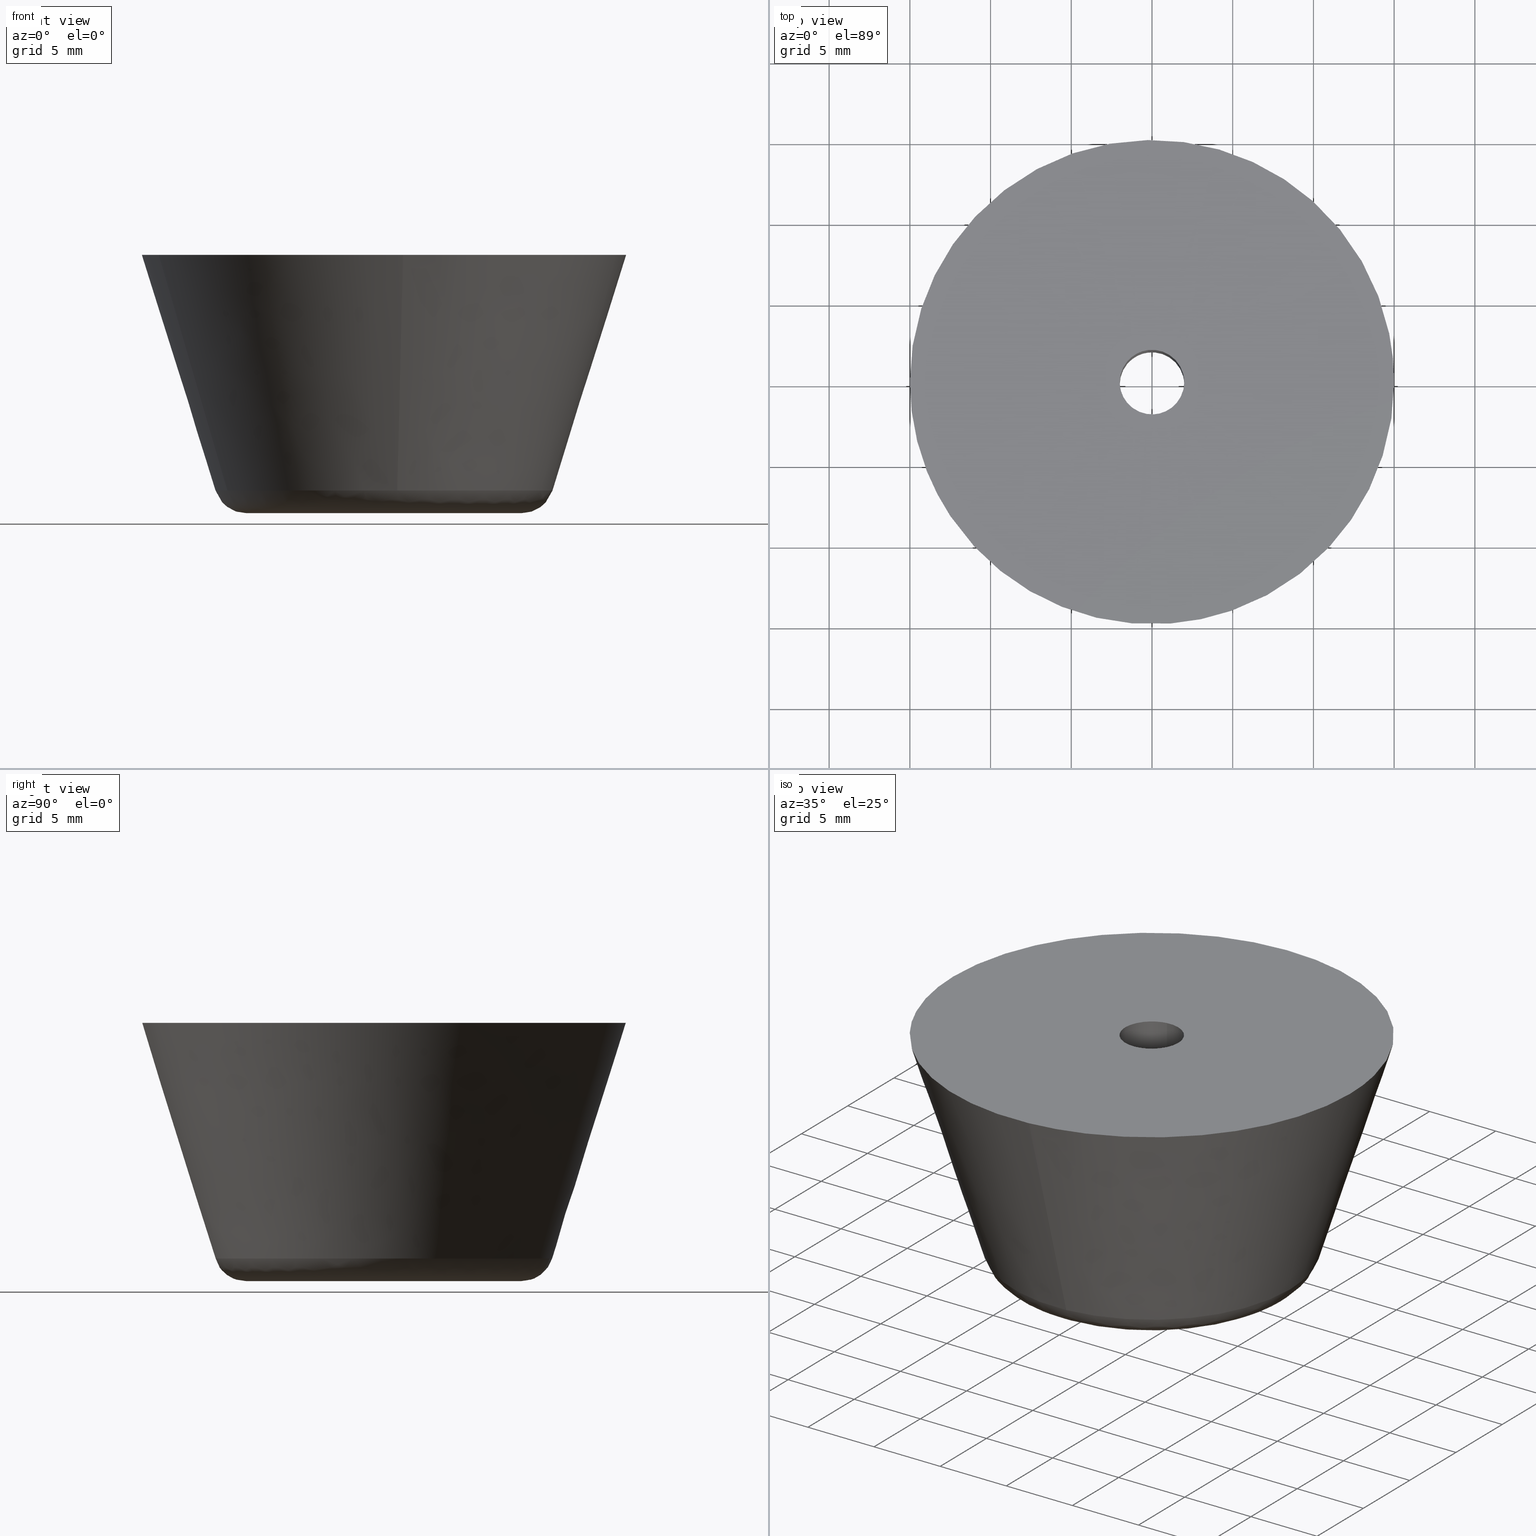
[diagram: canonical four-view strip — front | top / right | iso, engineering-drawing reading convention]
A machine part, canonical four-view strip (front | top / right | iso — engineering-drawing reading convention). The complete STEP part file that produces these views, byte-faithful:
ISO-10303-21;
HEADER;
/****************************************************************
 * Generated by software with PDE/Lib inside                    *
 * PDElib Version 4.4.1-0003, patched  Thursday August 19 11:58 *
 * International Technegroup Inc. (www.iti-oh.com)              *
 ****************************************************************/
FILE_DESCRIPTION((''),'2;1');
FILE_NAME('','2005-12-14T14:10:42',(''),(''),'','CADfix','');
FILE_SCHEMA(('AUTOMOTIVE_DESIGN'));
ENDSEC;
DATA;
#5=APPLICATION_CONTEXT('automotive design');
#6=APPLICATION_PROTOCOL_DEFINITION('Draft International Standard','automotive_design',1998,#5);
#7=PRODUCT_CONTEXT('None',#5,'mechanical');
#8=PRODUCT('rubber foot','','None',(#7));
#9=PRODUCT_RELATED_PRODUCT_CATEGORY('part','description',(#8));
#10=PRODUCT_DEFINITION_FORMATION('None','None',#8);
#11=PRODUCT_DEFINITION_CONTEXT('part definition',#5,'design');
#12=PRODUCT_DEFINITION('None','None',#10,#11);
#18=(NAMED_UNIT(*)PLANE_ANGLE_UNIT()SI_UNIT($,.RADIAN.));
#19=DIMENSIONAL_EXPONENTS(0.0,0.0,0.0,0.0,0.0,0.0,0.0);
#20=PLANE_ANGLE_MEASURE_WITH_UNIT(PLANE_ANGLE_MEASURE(0.017453292500000),#18);
#24=(CONVERSION_BASED_UNIT('DEGREE',#20)NAMED_UNIT(#19)PLANE_ANGLE_UNIT());
#28=(NAMED_UNIT(*)SI_UNIT($,.STERADIAN.)SOLID_ANGLE_UNIT());
#32=(LENGTH_UNIT()NAMED_UNIT(*)SI_UNIT(.MILLI.,.METRE.));
#34=UNCERTAINTY_MEASURE_WITH_UNIT(LENGTH_MEASURE(0.001000000000000),#32,'DISTANCE_ACCURACY_VALUE','');
#36=(GEOMETRIC_REPRESENTATION_CONTEXT(3)GLOBAL_UNCERTAINTY_ASSIGNED_CONTEXT((#34))GLOBAL_UNIT_ASSIGNED_CONTEXT((#24,#28,#32))REPRESENTATION_CONTEXT('None','None'));
#37=AXIS2_PLACEMENT_3D('',#38,#39,#40);
#38=CARTESIAN_POINT('',(0.0,0.0,0.0));
#39=DIRECTION('',(0.0,0.0,1.0));
#40=DIRECTION('',(1.0,0.0,0.0));
#41=ADVANCED_BREP_SHAPE_REPRESENTATION('',(#37,#855),#36);
#42=PRODUCT_DEFINITION_SHAPE('','',#12);
#43=SHAPE_DEFINITION_REPRESENTATION(#42,#41);
#44=CARTESIAN_POINT('',(-0.265541762350920,1.982515705081491,16.225000000000005));
#45=CARTESIAN_POINT('',(-0.250763563083323,1.984272318078493,16.225000000000001));
#46=CARTESIAN_POINT('',(-0.179229457275955,1.992775230897211,16.225000000000001));
#47=CARTESIAN_POINT('',(-0.122097079069714,1.996269596843733,16.225000000000001));
#48=CARTESIAN_POINT('',(1.874172517774020,2.118366675913447,16.225000000000009));
#49=CARTESIAN_POINT('',(1.996269596843733,0.122097079069714,16.225000000000001));
#50=CARTESIAN_POINT('',(2.118366675913447,-1.874172517774020,16.225000000000009));
#51=CARTESIAN_POINT('',(0.107740050417313,-1.997147710333691,16.225000000000012));
#52=CARTESIAN_POINT('',(0.093468306717904,-1.998020607572462,16.224999999999991));
#53=CARTESIAN_POINT('',(-0.265541762350920,1.982515705081491,6.769374999999999));
#54=CARTESIAN_POINT('',(-0.250763563083323,1.984272318078493,6.769375000000000));
#55=CARTESIAN_POINT('',(-0.179229457275955,1.992775230897211,6.769374999999999));
#56=CARTESIAN_POINT('',(-0.122097079069714,1.996269596843733,6.769374999999998));
#57=CARTESIAN_POINT('',(1.874172517774020,2.118366675913447,6.769374999999998));
#58=CARTESIAN_POINT('',(1.996269596843733,0.122097079069714,6.769374999999998));
#59=CARTESIAN_POINT('',(2.118366675913447,-1.874172517774020,6.769374999999998));
#60=CARTESIAN_POINT('',(0.107740050417313,-1.997147710333691,6.769375000000000));
#61=CARTESIAN_POINT('',(0.093468306717904,-1.998020607572462,6.769374999999996));
#69=(BOUNDED_SURFACE()B_SPLINE_SURFACE(2,1,((#44,#53),(#45,#54),(#46,#55),(#47,#56),(#48,#57),(#49,#58),(#50,#59),(#51,#60),(#52,#61)),.UNSPECIFIED.,.F.,.F.,.U.)B_SPLINE_SURFACE_WITH_KNOTS((3,1,2,2,1,3),(2,2),(0.0,0.033799847598702,0.166348187558092,3.480056686542851,6.793765185527611,6.827569362432394),(0.0,9.455625000000007),.UNSPECIFIED.)GEOMETRIC_REPRESENTATION_ITEM()RATIONAL_B_SPLINE_SURFACE(((0.972008777463900,0.972008777463900),(0.974757289129514,0.974757289129514),(0.988284271247462,0.988284271247462),(1.0,1.0),(0.707106781186548,0.707106781186548),(1.0,1.0),(0.707106781186548,0.707106781186548),(1.002987895340225,1.002987895340225),(1.005975790680451,1.005975790680451)))REPRESENTATION_ITEM('')SURFACE());
#70=CARTESIAN_POINT('',(-0.236068469328979,1.986019052725495,7.0));
#71=VERTEX_POINT('',#70);
#72=CARTESIAN_POINT('',(2.0,0.0,7.0));
#73=VERTEX_POINT('',#72);
#74=CARTESIAN_POINT('',(-0.236068469328979,1.986019052725495,6.999999999999999));
#75=CARTESIAN_POINT('',(-0.118448239319446,2.000000000000000,7.000000000000001));
#76=CARTESIAN_POINT('',(0.0,2.0,7.0));
#77=CARTESIAN_POINT('',(2.000000000000000,2.000000000000000,6.999999999999999));
#78=CARTESIAN_POINT('',(2.0,0.0,7.0));
#86=(BOUNDED_CURVE()B_SPLINE_CURVE(2,(#74,#75,#76,#77,#78),.UNSPECIFIED.,.F.,.U.)B_SPLINE_CURVE_WITH_KNOTS((3,2,3),(0.229562473513013,0.250000000000000,0.500000000000000),.UNSPECIFIED.)CURVE()GEOMETRIC_REPRESENTATION_ITEM()RATIONAL_B_SPLINE_CURVE((0.956026754182728,0.976055948330564,1.0,0.707106781186548,1.0))REPRESENTATION_ITEM(''));
#87=EDGE_CURVE('',#71,#73,#86,.T.);
#88=ORIENTED_EDGE('',*,*,#87,.T.);
#89=CARTESIAN_POINT('',(0.122093390652916,-1.996269822430129,7.000000000000023));
#90=VERTEX_POINT('',#89);
#91=CARTESIAN_POINT('',(2.0,0.0,7.0));
#92=CARTESIAN_POINT('',(2.000000000000000,-1.881415616509825,7.000000000000001));
#93=CARTESIAN_POINT('',(0.122093390652916,-1.996269822430129,7.000000000000023));
#101=(BOUNDED_CURVE()B_SPLINE_CURVE(2,(#91,#92,#93),.UNSPECIFIED.,.F.,.U.)B_SPLINE_CURVE_WITH_KNOTS((3,3),(0.500000000000000,0.739333281048922),.UNSPECIFIED.)CURVE()GEOMETRIC_REPRESENTATION_ITEM()RATIONAL_B_SPLINE_CURVE((1.0,0.719603619777586,0.976072724938143))REPRESENTATION_ITEM(''));
#102=EDGE_CURVE('',#73,#90,#101,.T.);
#103=ORIENTED_EDGE('',*,*,#102,.T.);
#104=CARTESIAN_POINT('',(0.122093436056999,-1.996269819653264,16.0));
#105=VERTEX_POINT('',#104);
#106=CARTESIAN_POINT('',(0.122093436056999,-1.996269819653264,16.0));
#107=CARTESIAN_POINT('',(0.122093390652916,-1.996269822430129,7.000000000000023));
#108=QUASI_UNIFORM_CURVE('',1,(#106,#107),.UNSPECIFIED.,.F.,.U.);
#109=EDGE_CURVE('',#105,#90,#108,.T.);
#110=ORIENTED_EDGE('',*,*,#109,.F.);
#111=CARTESIAN_POINT('',(2.0,0.0,16.0));
#112=VERTEX_POINT('',#111);
#113=CARTESIAN_POINT('',(2.0,0.0,16.0));
#114=CARTESIAN_POINT('',(1.999999999999999,-1.881415573638085,15.999999999999995));
#115=CARTESIAN_POINT('',(0.122093436056999,-1.996269819653264,16.0));
#123=(BOUNDED_CURVE()B_SPLINE_CURVE(2,(#113,#114,#115),.UNSPECIFIED.,.F.,.U.)B_SPLINE_CURVE_WITH_KNOTS((3,3),(0.500000000000000,0.739333277124436),.UNSPECIFIED.)CURVE()GEOMETRIC_REPRESENTATION_ITEM()RATIONAL_B_SPLINE_CURVE((1.0,0.719603624375408,0.976072716527199))REPRESENTATION_ITEM(''));
#124=EDGE_CURVE('',#112,#105,#123,.T.);
#125=ORIENTED_EDGE('',*,*,#124,.F.);
#126=CARTESIAN_POINT('',(-0.236068469328979,1.986019052725495,16.0));
#127=VERTEX_POINT('',#126);
#128=CARTESIAN_POINT('',(-0.236068469328979,1.986019052725495,16.000000000000004));
#129=CARTESIAN_POINT('',(-0.118448239319446,2.000000000000000,16.0));
#130=CARTESIAN_POINT('',(0.0,2.0,16.0));
#131=CARTESIAN_POINT('',(2.000000000000000,2.000000000000000,15.999999999999998));
#132=CARTESIAN_POINT('',(2.0,0.0,16.0));
#140=(BOUNDED_CURVE()B_SPLINE_CURVE(2,(#128,#129,#130,#131,#132),.UNSPECIFIED.,.F.,.U.)B_SPLINE_CURVE_WITH_KNOTS((3,2,3),(0.229562473513013,0.250000000000000,0.500000000000000),.UNSPECIFIED.)CURVE()GEOMETRIC_REPRESENTATION_ITEM()RATIONAL_B_SPLINE_CURVE((0.956026754182728,0.976055948330564,1.0,0.707106781186548,1.0))REPRESENTATION_ITEM(''));
#141=EDGE_CURVE('',#127,#112,#140,.T.);
#142=ORIENTED_EDGE('',*,*,#141,.F.);
#143=CARTESIAN_POINT('',(-0.236068469328979,1.986019052725495,16.0));
#144=CARTESIAN_POINT('',(-0.236068469328979,1.986019052725495,7.0));
#145=QUASI_UNIFORM_CURVE('',1,(#143,#144),.UNSPECIFIED.,.F.,.U.);
#146=EDGE_CURVE('',#127,#71,#145,.T.);
#147=ORIENTED_EDGE('',*,*,#146,.T.);
#148=EDGE_LOOP('',(#88,#103,#110,#125,#142,#147));
#149=FACE_OUTER_BOUND('',#148,.T.);
#150=ADVANCED_FACE('',(#149),#69,.F.);
#151=CARTESIAN_POINT('',(0.122097079069714,-1.996269596843733,16.225000000000001));
#152=CARTESIAN_POINT('',(-1.874172517774020,-2.118366675913447,16.225000000000009));
#153=CARTESIAN_POINT('',(-1.996269596843733,-0.122097079069714,16.225000000000001));
#154=CARTESIAN_POINT('',(-2.111572393465055,1.763086981679002,16.225000000000005));
#155=CARTESIAN_POINT('',(-0.236068469313517,1.986019052727332,16.224999999999998));
#156=CARTESIAN_POINT('',(0.122097079069714,-1.996269596843733,6.769374999999998));
#157=CARTESIAN_POINT('',(-1.874172517774020,-2.118366675913447,6.769374999999998));
#158=CARTESIAN_POINT('',(-1.996269596843733,-0.122097079069714,6.769374999999998));
#159=CARTESIAN_POINT('',(-2.111572393465055,1.763086981679002,6.769374999999998));
#160=CARTESIAN_POINT('',(-0.236068469313517,1.986019052727332,6.769374999999999));
#168=(BOUNDED_SURFACE()B_SPLINE_SURFACE(2,1,((#151,#156),(#152,#157),(#153,#158),(#154,#159),(#155,#160)),.UNSPECIFIED.,.F.,.F.,.U.)B_SPLINE_SURFACE_WITH_KNOTS((3,2,3),(2,2),(0.0,3.313708498984759,6.494868658010128),(0.0,9.455625000000005),.UNSPECIFIED.)GEOMETRIC_REPRESENTATION_ITEM()RATIONAL_B_SPLINE_SURFACE(((1.0,1.0),(0.707106781186548,0.707106781186548),(1.0,1.0),(0.718822509939086,0.718822509939086),(0.977505800795127,0.977505800795127)))REPRESENTATION_ITEM('')SURFACE());
#169=CARTESIAN_POINT('',(-2.0,0.0,7.0));
#170=VERTEX_POINT('',#169);
#171=CARTESIAN_POINT('',(-2.0,0.0,7.0));
#172=CARTESIAN_POINT('',(-2.000000000000000,1.776349051874881,6.999999999999999));
#173=CARTESIAN_POINT('',(-0.236068469328979,1.986019052725495,7.0));
#181=(BOUNDED_CURVE()B_SPLINE_CURVE(2,(#171,#172,#173),.UNSPECIFIED.,.F.,.U.)B_SPLINE_CURVE_WITH_KNOTS((3,3),(0.0,0.229562473513013),.UNSPECIFIED.)CURVE()GEOMETRIC_REPRESENTATION_ITEM()RATIONAL_B_SPLINE_CURVE((1.0,0.731050832855983,0.956026754182728))REPRESENTATION_ITEM(''));
#182=EDGE_CURVE('',#170,#71,#181,.T.);
#183=ORIENTED_EDGE('',*,*,#182,.T.);
#184=ORIENTED_EDGE('',*,*,#146,.F.);
#185=CARTESIAN_POINT('',(-2.0,0.0,16.0));
#186=VERTEX_POINT('',#185);
#187=CARTESIAN_POINT('',(-2.0,0.0,16.0));
#188=CARTESIAN_POINT('',(-2.000000000000000,1.776349051874881,15.999999999999998));
#189=CARTESIAN_POINT('',(-0.236068469328979,1.986019052725495,15.999999999999998));
#197=(BOUNDED_CURVE()B_SPLINE_CURVE(2,(#187,#188,#189),.UNSPECIFIED.,.F.,.U.)B_SPLINE_CURVE_WITH_KNOTS((3,3),(0.0,0.229562473513013),.UNSPECIFIED.)CURVE()GEOMETRIC_REPRESENTATION_ITEM()RATIONAL_B_SPLINE_CURVE((1.0,0.731050832855983,0.956026754182728))REPRESENTATION_ITEM(''));
#198=EDGE_CURVE('',#186,#127,#197,.T.);
#199=ORIENTED_EDGE('',*,*,#198,.F.);
#200=CARTESIAN_POINT('',(0.122093436056999,-1.996269819653264,16.0));
#201=CARTESIAN_POINT('',(0.061103699983748,-2.000000000000000,16.000000000000004));
#202=CARTESIAN_POINT('',(0.0,-2.0,16.0));
#203=CARTESIAN_POINT('',(-2.000000000000000,-2.000000000000000,15.999999999999998));
#204=CARTESIAN_POINT('',(-2.0,0.0,16.0));
#212=(BOUNDED_CURVE()B_SPLINE_CURVE(2,(#200,#201,#202,#203,#204),.UNSPECIFIED.,.F.,.U.)B_SPLINE_CURVE_WITH_KNOTS((3,2,3),(0.739333277124436,0.750000000000000,1.0),.UNSPECIFIED.)CURVE()GEOMETRIC_REPRESENTATION_ITEM()RATIONAL_B_SPLINE_CURVE((0.976072716527199,0.987503156811140,1.0,0.707106781186548,1.0))REPRESENTATION_ITEM(''));
#213=EDGE_CURVE('',#105,#186,#212,.T.);
#214=ORIENTED_EDGE('',*,*,#213,.F.);
#215=ORIENTED_EDGE('',*,*,#109,.T.);
#216=CARTESIAN_POINT('',(0.122093390652916,-1.996269822430129,7.000000000000023));
#217=CARTESIAN_POINT('',(0.061103677218059,-2.000000000000000,6.999999999999999));
#218=CARTESIAN_POINT('',(0.0,-2.0,7.0));
#219=CARTESIAN_POINT('',(-2.000000000000000,-2.000000000000000,6.999999999999999));
#220=CARTESIAN_POINT('',(-2.0,0.0,7.0));
#228=(BOUNDED_CURVE()B_SPLINE_CURVE(2,(#216,#217,#218,#219,#220),.UNSPECIFIED.,.F.,.U.)B_SPLINE_CURVE_WITH_KNOTS((3,2,3),(0.739333281048922,0.750000000000000,1.0),.UNSPECIFIED.)CURVE()GEOMETRIC_REPRESENTATION_ITEM()RATIONAL_B_SPLINE_CURVE((0.976072724938143,0.987503161408961,1.0,0.707106781186548,1.0))REPRESENTATION_ITEM(''));
#229=EDGE_CURVE('',#90,#170,#228,.T.);
#230=ORIENTED_EDGE('',*,*,#229,.T.);
#231=EDGE_LOOP('',(#183,#184,#199,#214,#215,#230));
#232=FACE_OUTER_BOUND('',#231,.T.);
#233=ADVANCED_FACE('',(#232),#168,.F.);
#234=CARTESIAN_POINT('',(-0.590171173283792,4.965047631818332,7.175000000000001));
#235=CARTESIAN_POINT('',(-0.448073643189888,4.981938077243028,7.175000000000001));
#236=CARTESIAN_POINT('',(-0.305242697674285,4.990673992109334,7.175000000000001));
#237=CARTESIAN_POINT('',(4.685431294435048,5.295916689783620,7.175000000000001));
#238=CARTESIAN_POINT('',(4.990673992109334,0.305242697674285,7.175000000000001));
#239=CARTESIAN_POINT('',(5.295916689783620,-4.685431294435048,7.175000000000001));
#240=CARTESIAN_POINT('',(0.305242697674285,-4.990673992109334,7.175000000000001));
#241=CARTESIAN_POINT('',(-0.590171173283792,4.965047631818332,-0.179375000000000));
#242=CARTESIAN_POINT('',(-0.448073643189888,4.981938077243028,-0.179375000000000));
#243=CARTESIAN_POINT('',(-0.305242697674285,4.990673992109334,-0.179375000000000));
#244=CARTESIAN_POINT('',(4.685431294435048,5.295916689783620,-0.179375000000000));
#245=CARTESIAN_POINT('',(4.990673992109334,0.305242697674285,-0.179375000000000));
#246=CARTESIAN_POINT('',(5.295916689783620,-4.685431294435048,-0.179375000000000));
#247=CARTESIAN_POINT('',(0.305242697674285,-4.990673992109334,-0.179375000000000));
#255=(BOUNDED_SURFACE()B_SPLINE_SURFACE(2,1,((#234,#241),(#235,#242),(#236,#243),(#237,#244),(#238,#245),(#239,#246),(#240,#247)),.UNSPECIFIED.,.F.,.F.,.U.)B_SPLINE_SURFACE_WITH_KNOTS((3,2,2,3),(2,2),(0.0,0.331370849898476,8.615642097360375,16.899913344822270),(0.0,7.354375000000001),.UNSPECIFIED.)GEOMETRIC_REPRESENTATION_ITEM()RATIONAL_B_SPLINE_SURFACE(((0.977505800795127,0.977505800795127),(0.988284271247462,0.988284271247462),(1.0,1.0),(0.707106781186548,0.707106781186548),(1.0,1.0),(0.707106781186548,0.707106781186548),(1.0,1.0)))REPRESENTATION_ITEM('')SURFACE());
#256=CARTESIAN_POINT('',(-0.590171173301897,4.965047631816179,7.0));
#257=VERTEX_POINT('',#256);
#258=CARTESIAN_POINT('',(5.0,0.0,7.0));
#259=VERTEX_POINT('',#258);
#260=CARTESIAN_POINT('',(-0.590171173301897,4.965047631816179,7.0));
#261=CARTESIAN_POINT('',(-0.296120598277846,5.0,7.0));
#262=CARTESIAN_POINT('',(0.0,5.0,7.0));
#263=CARTESIAN_POINT('',(5.000000000000001,5.000000000000001,6.999999999999999));
#264=CARTESIAN_POINT('',(5.0,0.0,7.0));
#272=(BOUNDED_CURVE()B_SPLINE_CURVE(2,(#260,#261,#262,#263,#264),.UNSPECIFIED.,.F.,.U.)B_SPLINE_CURVE_WITH_KNOTS((3,2,3),(0.229562473514412,0.250000000000000,0.500000000000000),.UNSPECIFIED.)CURVE()GEOMETRIC_REPRESENTATION_ITEM()RATIONAL_B_SPLINE_CURVE((0.956026754185470,0.976055948332203,1.0,0.707106781186548,1.0))REPRESENTATION_ITEM(''));
#273=EDGE_CURVE('',#257,#259,#272,.T.);
#274=ORIENTED_EDGE('',*,*,#273,.F.);
#275=CARTESIAN_POINT('',(-0.590161985997096,4.965048723849380,-4.259142E-017));
#276=VERTEX_POINT('',#275);
#277=CARTESIAN_POINT('',(-0.590171173301897,4.965047631816179,7.0));
#278=CARTESIAN_POINT('',(-0.590161985997096,4.965048723849380,-4.259142E-017));
#279=QUASI_UNIFORM_CURVE('',1,(#277,#278),.UNSPECIFIED.,.F.,.U.);
#280=EDGE_CURVE('',#257,#276,#279,.T.);
#281=ORIENTED_EDGE('',*,*,#280,.T.);
#282=CARTESIAN_POINT('',(5.0,0.0,0.0));
#283=VERTEX_POINT('',#282);
#284=CARTESIAN_POINT('',(-0.590161985997096,4.965048723849380,-4.259142E-017));
#285=CARTESIAN_POINT('',(-0.296115956054067,5.0,0.0));
#286=CARTESIAN_POINT('',(0.0,5.0,0.0));
#287=CARTESIAN_POINT('',(5.000000000000001,5.000000000000001,0.0));
#288=CARTESIAN_POINT('',(5.0,0.0,0.0));
#296=(BOUNDED_CURVE()B_SPLINE_CURVE(2,(#284,#285,#286,#287,#288),.UNSPECIFIED.,.F.,.U.)B_SPLINE_CURVE_WITH_KNOTS((3,2,3),(0.229562786238015,0.250000000000000,0.500000000000000),.UNSPECIFIED.)CURVE()GEOMETRIC_REPRESENTATION_ITEM()RATIONAL_B_SPLINE_CURVE((0.956027367137448,0.976056314710695,1.0,0.707106781186548,1.0))REPRESENTATION_ITEM(''));
#297=EDGE_CURVE('',#276,#283,#296,.T.);
#298=ORIENTED_EDGE('',*,*,#297,.T.);
#299=CARTESIAN_POINT('',(0.305242697700494,-4.990673992107731,-4.163336E-017));
#300=VERTEX_POINT('',#299);
#301=CARTESIAN_POINT('',(5.0,0.0,0.0));
#302=CARTESIAN_POINT('',(4.999999999999999,-4.703530334478959,0.0));
#303=CARTESIAN_POINT('',(0.305242697700494,-4.990673992107731,-4.163336E-017));
#311=(BOUNDED_CURVE()B_SPLINE_CURVE(2,(#301,#302,#303),.UNSPECIFIED.,.F.,.U.)B_SPLINE_CURVE_WITH_KNOTS((3,3),(0.500000000000000,0.739332962240155),.UNSPECIFIED.)CURVE()GEOMETRIC_REPRESENTATION_ITEM()RATIONAL_B_SPLINE_CURVE((1.0,0.719603993285290,0.976072041669316))REPRESENTATION_ITEM(''));
#312=EDGE_CURVE('',#283,#300,#311,.T.);
#313=ORIENTED_EDGE('',*,*,#312,.T.);
#314=CARTESIAN_POINT('',(0.305242697700494,-4.990673992107731,7.0));
#315=VERTEX_POINT('',#314);
#316=CARTESIAN_POINT('',(0.305242697700494,-4.990673992107731,7.0));
#317=CARTESIAN_POINT('',(0.305242697700494,-4.990673992107731,-4.163336E-017));
#318=QUASI_UNIFORM_CURVE('',1,(#316,#317),.UNSPECIFIED.,.F.,.U.);
#319=EDGE_CURVE('',#315,#300,#318,.T.);
#320=ORIENTED_EDGE('',*,*,#319,.F.);
#321=CARTESIAN_POINT('',(5.0,0.0,7.0));
#322=CARTESIAN_POINT('',(4.999999999999999,-4.703530334478959,7.0));
#323=CARTESIAN_POINT('',(0.305242697700494,-4.990673992107731,7.0));
#331=(BOUNDED_CURVE()B_SPLINE_CURVE(2,(#321,#322,#323),.UNSPECIFIED.,.F.,.U.)B_SPLINE_CURVE_WITH_KNOTS((3,3),(0.500000000000000,0.739332962240155),.UNSPECIFIED.)CURVE()GEOMETRIC_REPRESENTATION_ITEM()RATIONAL_B_SPLINE_CURVE((1.0,0.719603993285290,0.976072041669316))REPRESENTATION_ITEM(''));
#332=EDGE_CURVE('',#259,#315,#331,.T.);
#333=ORIENTED_EDGE('',*,*,#332,.F.);
#334=EDGE_LOOP('',(#274,#281,#298,#313,#320,#333));
#335=FACE_OUTER_BOUND('',#334,.T.);
#336=ADVANCED_FACE('',(#335),#255,.F.);
#337=CARTESIAN_POINT('',(0.374015151210253,-4.986467688656898,7.175000000000003));
#338=CARTESIAN_POINT('',(0.339727342637196,-4.988564820868444,7.175000000000002));
#339=CARTESIAN_POINT('',(-4.685431294435048,-5.295916689783620,7.175000000000001));
#340=CARTESIAN_POINT('',(-4.990673992109334,-0.305242697674285,7.175000000000001));
#341=CARTESIAN_POINT('',(-5.278930983662638,4.407717454197504,7.175000000000000));
#342=CARTESIAN_POINT('',(-0.555063642270887,4.969220694053668,7.175000000000002));
#343=CARTESIAN_POINT('',(-0.520144802017644,4.973371327531964,7.175000000000001));
#344=CARTESIAN_POINT('',(0.374015151210253,-4.986467688656898,-0.179375000000000));
#345=CARTESIAN_POINT('',(0.339727342637196,-4.988564820868444,-0.179375000000000));
#346=CARTESIAN_POINT('',(-4.685431294435048,-5.295916689783620,-0.179375000000000));
#347=CARTESIAN_POINT('',(-4.990673992109334,-0.305242697674285,-0.179375000000000));
#348=CARTESIAN_POINT('',(-5.278930983662638,4.407717454197504,-0.179375000000000));
#349=CARTESIAN_POINT('',(-0.555063642270887,4.969220694053668,-0.179375000000000));
#350=CARTESIAN_POINT('',(-0.520144802017644,4.973371327531964,-0.179375000000000));
#358=(BOUNDED_SURFACE()B_SPLINE_SURFACE(2,1,((#337,#344),(#338,#345),(#339,#346),(#340,#347),(#341,#348),(#342,#349),(#343,#350)),.UNSPECIFIED.,.F.,.F.,.U.)B_SPLINE_SURFACE_WITH_KNOTS((3,1,2,1,3),(2,2),(0.0,0.081185909419015,8.365457156880913,16.318357554444329,16.399554059356099),(0.0,7.354375000000002),.UNSPECIFIED.)GEOMETRIC_REPRESENTATION_ITEM()RATIONAL_B_SPLINE_SURFACE(((1.005740710708698,1.005740710708698),(1.002870355354349,1.002870355354349),(0.707106781186548,0.707106781186548),(1.0,1.0),(0.718822509939086,0.718822509939086),(0.980146872359787,0.980146872359787),(0.982787943924448,0.982787943924448)))REPRESENTATION_ITEM('')SURFACE());
#359=CARTESIAN_POINT('',(-5.0,0.0,7.0));
#360=VERTEX_POINT('',#359);
#361=CARTESIAN_POINT('',(-5.0,0.0,7.0));
#362=CARTESIAN_POINT('',(-5.0,4.440872629724227,6.999999999999999));
#363=CARTESIAN_POINT('',(-0.590171173301897,4.965047631816179,7.0));
#371=(BOUNDED_CURVE()B_SPLINE_CURVE(2,(#361,#362,#363),.UNSPECIFIED.,.F.,.U.)B_SPLINE_CURVE_WITH_KNOTS((3,3),(0.0,0.229562473514412),.UNSPECIFIED.)CURVE()GEOMETRIC_REPRESENTATION_ITEM()RATIONAL_B_SPLINE_CURVE((1.0,0.731050832854344,0.956026754185470))REPRESENTATION_ITEM(''));
#372=EDGE_CURVE('',#360,#257,#371,.T.);
#373=ORIENTED_EDGE('',*,*,#372,.F.);
#374=CARTESIAN_POINT('',(0.305242697700494,-4.990673992107731,7.000000000000001));
#375=CARTESIAN_POINT('',(0.152763816519227,-5.000000000000001,7.000000000000001));
#376=CARTESIAN_POINT('',(0.0,-5.0,7.0));
#377=CARTESIAN_POINT('',(-5.000000000000001,-5.000000000000001,6.999999999999999));
#378=CARTESIAN_POINT('',(-5.0,0.0,7.0));
#386=(BOUNDED_CURVE()B_SPLINE_CURVE(2,(#374,#375,#376,#377,#378),.UNSPECIFIED.,.F.,.U.)B_SPLINE_CURVE_WITH_KNOTS((3,2,3),(0.739332962240156,0.750000000000000,1.0),.UNSPECIFIED.)CURVE()GEOMETRIC_REPRESENTATION_ITEM()RATIONAL_B_SPLINE_CURVE((0.976072041669318,0.987502787901259,1.0,0.707106781186548,1.0))REPRESENTATION_ITEM(''));
#387=EDGE_CURVE('',#315,#360,#386,.T.);
#388=ORIENTED_EDGE('',*,*,#387,.F.);
#389=ORIENTED_EDGE('',*,*,#319,.T.);
#390=CARTESIAN_POINT('',(-5.0,0.0,0.0));
#391=VERTEX_POINT('',#390);
#392=CARTESIAN_POINT('',(0.305242697700494,-4.990673992107731,-4.163336E-017));
#393=CARTESIAN_POINT('',(0.152763816519227,-5.000000000000001,0.0));
#394=CARTESIAN_POINT('',(0.0,-5.0,0.0));
#395=CARTESIAN_POINT('',(-5.000000000000001,-5.000000000000001,0.0));
#396=CARTESIAN_POINT('',(-5.0,0.0,0.0));
#404=(BOUNDED_CURVE()B_SPLINE_CURVE(2,(#392,#393,#394,#395,#396),.UNSPECIFIED.,.F.,.U.)B_SPLINE_CURVE_WITH_KNOTS((3,2,3),(0.739332962240156,0.750000000000000,1.0),.UNSPECIFIED.)CURVE()GEOMETRIC_REPRESENTATION_ITEM()RATIONAL_B_SPLINE_CURVE((0.976072041669318,0.987502787901259,1.0,0.707106781186548,1.0))REPRESENTATION_ITEM(''));
#405=EDGE_CURVE('',#300,#391,#404,.T.);
#406=ORIENTED_EDGE('',*,*,#405,.T.);
#407=CARTESIAN_POINT('',(-5.0,0.0,0.0));
#408=CARTESIAN_POINT('',(-5.0,4.440880904966643,0.0));
#409=CARTESIAN_POINT('',(-0.590161985997096,4.965048723849380,-4.259142E-017));
#417=(BOUNDED_CURVE()B_SPLINE_CURVE(2,(#407,#408,#409),.UNSPECIFIED.,.F.,.U.)B_SPLINE_CURVE_WITH_KNOTS((3,3),(0.0,0.229562786238015),.UNSPECIFIED.)CURVE()GEOMETRIC_REPRESENTATION_ITEM()RATIONAL_B_SPLINE_CURVE((1.0,0.731050466475853,0.956027367137448))REPRESENTATION_ITEM(''));
#418=EDGE_CURVE('',#391,#276,#417,.T.);
#419=ORIENTED_EDGE('',*,*,#418,.T.);
#420=ORIENTED_EDGE('',*,*,#280,.F.);
#421=EDGE_LOOP('',(#373,#388,#389,#406,#419,#420));
#422=FACE_OUTER_BOUND('',#421,.T.);
#423=ADVANCED_FACE('',(#422),#358,.F.);
#424=CARTESIAN_POINT('',(-9.624099755138655,-3.738585537900458,1.038536249999999));
#425=CARTESIAN_POINT('',(-9.612271390467090,-3.768481445253441,1.038536249999999));
#426=CARTESIAN_POINT('',(-6.794163938411678,-10.891180282898997,1.038536249999999));
#427=CARTESIAN_POINT('',(0.839131332426015,-10.290426916387787,1.038536250000000));
#428=CARTESIAN_POINT('',(0.868140430357681,-10.288143850867110,1.038536249999999));
#429=CARTESIAN_POINT('',(-14.091319182249395,-5.473925192490683,16.374036593750002));
#430=CARTESIAN_POINT('',(-14.074000444265407,-5.517697886402020,16.374036593749995));
#431=CARTESIAN_POINT('',(-9.947811750555598,-15.946540615999679,16.374036593749995));
#432=CARTESIAN_POINT('',(1.228631014004992,-15.066935494201095,16.374036593750009));
#433=CARTESIAN_POINT('',(1.271105268069740,-15.063592697910090,16.374036593749995));
#441=(BOUNDED_SURFACE()B_SPLINE_SURFACE(2,1,((#424,#429),(#425,#430),(#426,#431),(#427,#432),(#428,#433)),.UNSPECIFIED.,.F.,.F.,.U.)B_SPLINE_SURFACE_WITH_KNOTS((3,1,1,3),(2,2),(0.0,0.099513552533516,20.000119413965301,20.099618811483360),(0.0,16.066892167432538),.UNSPECIFIED.)GEOMETRIC_REPRESENTATION_ITEM()RATIONAL_B_SPLINE_SURFACE(((0.907680206113633,0.907680206113633),(0.906977188046664,0.906977188046664),(0.765685424949238,0.765685424949238),(1.001171530113685,1.001171530113685),(1.002343060227371,1.002343060227371)))REPRESENTATION_ITEM('')SURFACE());
#442=CARTESIAN_POINT('',(0.818999183986400,-10.406399021797251,1.403448406243327));
#443=VERTEX_POINT('',#442);
#444=CARTESIAN_POINT('',(-9.706462087134847,-3.840370222216521,1.403440654762399));
#445=VERTEX_POINT('',#444);
#446=CARTESIAN_POINT('',(0.818999183986400,-10.406399021797245,1.403448406243326));
#447=CARTESIAN_POINT('',(0.410131792018752,-10.438577488119355,1.403448200127219));
#448=CARTESIAN_POINT('',(0.000000111438537,-10.438577471909250,1.403447982698944));
#449=CARTESIAN_POINT('',(-7.095877095890447,-10.438577191450744,1.403444220872161));
#450=CARTESIAN_POINT('',(-9.706462087134847,-3.840370222216521,1.403440654762399));
#458=(BOUNDED_CURVE()B_SPLINE_CURVE(2,(#446,#447,#448,#449,#450),.UNSPECIFIED.,.F.,.U.)B_SPLINE_CURVE_WITH_KNOTS((3,2,3),(0.736331336337999,0.750000000000000,0.937532653506869),.UNSPECIFIED.)CURVE()GEOMETRIC_REPRESENTATION_ITEM()RATIONAL_B_SPLINE_CURVE((0.969723430685922,0.983986164412632,1.0,0.780291829926981,0.890203308901416))REPRESENTATION_ITEM(''));
#459=EDGE_CURVE('',#443,#445,#458,.T.);
#460=ORIENTED_EDGE('',*,*,#459,.F.);
#461=CARTESIAN_POINT('',(1.176877674963126,-14.953758607669529,15.999993339557220));
#462=VERTEX_POINT('',#461);
#463=CARTESIAN_POINT('',(0.818999183986400,-10.406399021797251,1.403448406243327));
#464=CARTESIAN_POINT('',(1.176877674963126,-14.953758607669529,15.999993339557220));
#465=QUASI_UNIFORM_CURVE('',1,(#463,#464),.UNSPECIFIED.,.F.,.U.);
#466=EDGE_CURVE('',#443,#462,#465,.T.);
#467=ORIENTED_EDGE('',*,*,#466,.T.);
#468=CARTESIAN_POINT('',(-13.947966128556700,-5.518529929664375,15.999992715519070));
#469=VERTEX_POINT('',#468);
#470=CARTESIAN_POINT('',(1.176877674963126,-14.953758607669529,15.999993339557214));
#471=CARTESIAN_POINT('',(0.589347183664466,-14.999997957930429,15.999993322963764));
#472=CARTESIAN_POINT('',(-0.000000038720543,-14.999997992641530,15.999993305459631));
#473=CARTESIAN_POINT('',(-10.196612230384220,-14.999998593196917,15.999993002611232));
#474=CARTESIAN_POINT('',(-13.947966128556695,-5.518529929664375,15.999992715519074));
#482=(BOUNDED_CURVE()B_SPLINE_CURVE(2,(#470,#471,#472,#473,#474),.UNSPECIFIED.,.F.,.U.)B_SPLINE_CURVE_WITH_KNOTS((3,2,3),(0.736331399193141,0.750000000000000,0.937532605507927),.UNSPECIFIED.)CURVE()GEOMETRIC_REPRESENTATION_ITEM()RATIONAL_B_SPLINE_CURVE((0.969723561859888,0.983986238052012,1.0,0.780291886161240,0.890203252637798))REPRESENTATION_ITEM(''));
#483=EDGE_CURVE('',#462,#469,#482,.T.);
#484=ORIENTED_EDGE('',*,*,#483,.T.);
#485=CARTESIAN_POINT('',(-9.706462087134847,-3.840370222216521,1.403440654762399));
#486=CARTESIAN_POINT('',(-13.947966128556700,-5.518529929664375,15.999992715519070));
#487=QUASI_UNIFORM_CURVE('',1,(#485,#486),.UNSPECIFIED.,.F.,.U.);
#488=EDGE_CURVE('',#445,#469,#487,.T.);
#489=ORIENTED_EDGE('',*,*,#488,.F.);
#490=EDGE_LOOP('',(#460,#467,#484,#489));
#491=FACE_OUTER_BOUND('',#490,.T.);
#492=ADVANCED_FACE('',(#491),#441,.T.);
#493=CARTESIAN_POINT('',(0.810054264430752,-10.292715331268459,1.038536250000000));
#494=CARTESIAN_POINT('',(11.102769595699215,-9.482661066837711,1.038536250000000));
#495=CARTESIAN_POINT('',(10.292715331268459,0.810054264430752,1.038536250000000));
#496=CARTESIAN_POINT('',(9.482661066837711,11.102769595699215,1.038536250000000));
#497=CARTESIAN_POINT('',(-0.810054264430752,10.292715331268459,1.038536250000000));
#498=CARTESIAN_POINT('',(-11.102769595699215,9.482661066837711,1.038536250000000));
#499=CARTESIAN_POINT('',(-10.292715331268459,-0.810054264430752,1.038536250000000));
#500=CARTESIAN_POINT('',(-10.171028084699630,-2.356237333115685,1.038536249999999));
#501=CARTESIAN_POINT('',(-9.600424674717358,-3.798423734515331,1.038536249999999));
#502=CARTESIAN_POINT('',(1.186057240204856,-15.070286122865131,16.374036593749999));
#503=CARTESIAN_POINT('',(16.256343363069981,-13.884228882660269,16.374036593749995));
#504=CARTESIAN_POINT('',(15.070286122865131,1.186057240204856,16.374036593749999));
#505=CARTESIAN_POINT('',(13.884228882660269,16.256343363069981,16.374036593749995));
#506=CARTESIAN_POINT('',(-1.186057240204856,15.070286122865131,16.374036593749999));
#507=CARTESIAN_POINT('',(-16.256343363069981,13.884228882660269,16.374036593749995));
#508=CARTESIAN_POINT('',(-15.070286122865131,-1.186057240204856,16.374036593749999));
#509=CARTESIAN_POINT('',(-14.892115293859021,-3.449932271570356,16.374036593749999));
#510=CARTESIAN_POINT('',(-14.056654837181295,-5.561538491317948,16.374036593749999));
#518=(BOUNDED_SURFACE()B_SPLINE_SURFACE(2,1,((#493,#502),(#494,#503),(#495,#504),(#496,#505),(#497,#506),(#498,#507),(#499,#508),(#500,#509),(#501,#510)),.UNSPECIFIED.,.F.,.F.,.U.)B_SPLINE_SURFACE_WITH_KNOTS((3,2,2,2,3),(2,2),(0.0,25.046477535136670,50.092955070273327,75.139432605409993,80.148728112437340),(0.0,16.066864401608200),.UNSPECIFIED.)GEOMETRIC_REPRESENTATION_ITEM()RATIONAL_B_SPLINE_SURFACE(((1.0,1.0),(0.707106781186548,0.707106781186548),(1.0,1.0),(0.707106781186548,0.707106781186548),(1.0,1.0),(0.707106781186548,0.707106781186548),(1.0,1.0),(0.941421356237310,0.941421356237310),(0.906274169979695,0.906274169979695)))REPRESENTATION_ITEM('')SURFACE());
#519=CARTESIAN_POINT('',(-10.438578000000000,0.0,1.403450000000000));
#520=VERTEX_POINT('',#519);
#521=CARTESIAN_POINT('',(-9.706462087134847,-3.840370222216521,1.403440654762399));
#522=CARTESIAN_POINT('',(-10.438576642216686,-1.989968693509344,1.403445327381199));
#523=CARTESIAN_POINT('',(-10.438578000000000,0.0,1.403450000000000));
#531=(BOUNDED_CURVE()B_SPLINE_CURVE(2,(#521,#522,#523),.UNSPECIFIED.,.F.,.U.)B_SPLINE_CURVE_WITH_KNOTS((3,3),(0.937532653506869,1.0),.UNSPECIFIED.)CURVE()GEOMETRIC_REPRESENTATION_ITEM()RATIONAL_B_SPLINE_CURVE((0.890203308901416,0.926814951259567,1.0))REPRESENTATION_ITEM(''));
#532=EDGE_CURVE('',#445,#520,#531,.T.);
#533=ORIENTED_EDGE('',*,*,#532,.F.);
#534=ORIENTED_EDGE('',*,*,#488,.T.);
#535=CARTESIAN_POINT('',(-15.0,0.0,16.0));
#536=VERTEX_POINT('',#535);
#537=CARTESIAN_POINT('',(-13.947966128556695,-5.518529929664375,15.999992715519074));
#538=CARTESIAN_POINT('',(-14.999998941627572,-2.859542634704094,15.999996357759541));
#539=CARTESIAN_POINT('',(-15.0,0.0,16.0));
#547=(BOUNDED_CURVE()B_SPLINE_CURVE(2,(#537,#538,#539),.UNSPECIFIED.,.F.,.U.)B_SPLINE_CURVE_WITH_KNOTS((3,3),(0.937532605507927,1.0),.UNSPECIFIED.)CURVE()GEOMETRIC_REPRESENTATION_ITEM()RATIONAL_B_SPLINE_CURVE((0.890203252637798,0.926814895025307,1.0))REPRESENTATION_ITEM(''));
#548=EDGE_CURVE('',#469,#536,#547,.T.);
#549=ORIENTED_EDGE('',*,*,#548,.T.);
#550=CARTESIAN_POINT('',(15.0,0.0,16.0));
#551=VERTEX_POINT('',#550);
#552=CARTESIAN_POINT('',(-15.0,0.0,16.0));
#553=CARTESIAN_POINT('',(-14.999999999999996,14.999999999999996,16.0));
#554=CARTESIAN_POINT('',(0.0,15.0,16.0));
#555=CARTESIAN_POINT('',(14.999999999999996,14.999999999999996,16.0));
#556=CARTESIAN_POINT('',(15.0,0.0,16.0));
#564=(BOUNDED_CURVE()B_SPLINE_CURVE(2,(#552,#553,#554,#555,#556),.UNSPECIFIED.,.F.,.U.)B_SPLINE_CURVE_WITH_KNOTS((3,2,3),(0.0,0.250000000000000,0.500000000000000),.UNSPECIFIED.)CURVE()GEOMETRIC_REPRESENTATION_ITEM()RATIONAL_B_SPLINE_CURVE((1.0,0.707106781186547,1.0,0.707106781186547,1.0))REPRESENTATION_ITEM(''));
#565=EDGE_CURVE('',#536,#551,#564,.T.);
#566=ORIENTED_EDGE('',*,*,#565,.T.);
#567=CARTESIAN_POINT('',(15.0,0.0,16.0));
#568=CARTESIAN_POINT('',(14.999999918348569,-13.865864334202168,15.999996669778607));
#569=CARTESIAN_POINT('',(1.176877674963126,-14.953758607669529,15.999993339557214));
#577=(BOUNDED_CURVE()B_SPLINE_CURVE(2,(#567,#568,#569),.UNSPECIFIED.,.F.,.U.)B_SPLINE_CURVE_WITH_KNOTS((3,3),(0.500000000000000,0.736331399193141),.UNSPECIFIED.)CURVE()GEOMETRIC_REPRESENTATION_ITEM()RATIONAL_B_SPLINE_CURVE((1.0,0.723120543134536,0.969723561859888))REPRESENTATION_ITEM(''));
#578=EDGE_CURVE('',#551,#462,#577,.T.);
#579=ORIENTED_EDGE('',*,*,#578,.T.);
#580=ORIENTED_EDGE('',*,*,#466,.F.);
#581=CARTESIAN_POINT('',(10.438578000000000,0.0,1.403450000000000));
#582=VERTEX_POINT('',#581);
#583=CARTESIAN_POINT('',(10.438578000000000,0.0,1.403450000000000));
#584=CARTESIAN_POINT('',(10.438577980461805,-9.649324017404140,1.403449203121664));
#585=CARTESIAN_POINT('',(0.818999183986400,-10.406399021797245,1.403448406243326));
#593=(BOUNDED_CURVE()B_SPLINE_CURVE(2,(#583,#584,#585),.UNSPECIFIED.,.F.,.U.)B_SPLINE_CURVE_WITH_KNOTS((3,3),(0.500000000000000,0.736331336337999),.UNSPECIFIED.)CURVE()GEOMETRIC_REPRESENTATION_ITEM()RATIONAL_B_SPLINE_CURVE((1.0,0.723120616773916,0.969723430685922))REPRESENTATION_ITEM(''));
#594=EDGE_CURVE('',#582,#443,#593,.T.);
#595=ORIENTED_EDGE('',*,*,#594,.F.);
#596=CARTESIAN_POINT('',(1.800007206947716,10.282212031388489,1.403450006860395));
#597=VERTEX_POINT('',#596);
#598=CARTESIAN_POINT('',(1.800007206947716,10.282212031388493,1.403450006860395));
#599=CARTESIAN_POINT('',(10.438578000000001,8.769941188450281,1.403450000000000));
#600=CARTESIAN_POINT('',(10.438578000000000,0.0,1.403450000000000));
#608=(BOUNDED_CURVE()B_SPLINE_CURVE(2,(#598,#599,#600),.UNSPECIFIED.,.F.,.U.)B_SPLINE_CURVE_WITH_KNOTS((3,3),(0.279646299375404,0.500000000000000),.UNSPECIFIED.)CURVE()GEOMETRIC_REPRESENTATION_ITEM()RATIONAL_B_SPLINE_CURVE((0.938771991543219,0.741839581386425,1.0))REPRESENTATION_ITEM(''));
#609=EDGE_CURVE('',#597,#582,#608,.T.);
#610=ORIENTED_EDGE('',*,*,#609,.F.);
#611=CARTESIAN_POINT('',(-10.005604438301059,2.975195796537900,1.403450006859276));
#612=VERTEX_POINT('',#611);
#613=CARTESIAN_POINT('',(-10.005604438301061,2.975195796537900,1.403450006859277));
#614=CARTESIAN_POINT('',(-7.786345895016502,10.438578000000000,1.403450000000000));
#615=CARTESIAN_POINT('',(0.0,10.438578000000000,1.403450000000000));
#616=CARTESIAN_POINT('',(0.906795330766891,10.438578000000001,1.403450000000000));
#617=CARTESIAN_POINT('',(1.800007206947716,10.282212031388491,1.403450006860396));
#625=(BOUNDED_CURVE()B_SPLINE_CURVE(2,(#613,#614,#615,#616,#617),.UNSPECIFIED.,.F.,.U.)B_SPLINE_CURVE_WITH_KNOTS((3,2,3),(0.048526662064601,0.250000000000000,0.279646299375404),.UNSPECIFIED.)CURVE()GEOMETRIC_REPRESENTATION_ITEM()RATIONAL_B_SPLINE_CURVE((0.908365862590292,0.763959302188042,1.0,0.965267199800123,0.938771991543219))REPRESENTATION_ITEM(''));
#626=EDGE_CURVE('',#612,#597,#625,.T.);
#627=ORIENTED_EDGE('',*,*,#626,.F.);
#628=CARTESIAN_POINT('',(-10.438578000000000,0.0,1.403450000000000));
#629=CARTESIAN_POINT('',(-10.438578000000000,1.519102733238019,1.403450000000001));
#630=CARTESIAN_POINT('',(-10.005604438301061,2.975195796537900,1.403450006859277));
#638=(BOUNDED_CURVE()B_SPLINE_CURVE(2,(#628,#629,#630),.UNSPECIFIED.,.F.,.U.)B_SPLINE_CURVE_WITH_KNOTS((3,3),(0.0,0.048526662064601),.UNSPECIFIED.)CURVE()GEOMETRIC_REPRESENTATION_ITEM()RATIONAL_B_SPLINE_CURVE((1.0,0.943147478998505,0.908365862590292))REPRESENTATION_ITEM(''));
#639=EDGE_CURVE('',#520,#612,#638,.T.);
#640=ORIENTED_EDGE('',*,*,#639,.F.);
#641=EDGE_LOOP('',(#533,#534,#549,#566,#579,#580,#595,#610,#627,#640));
#642=FACE_OUTER_BOUND('',#641,.T.);
#643=ADVANCED_FACE('',(#642),#518,.T.);
#644=CARTESIAN_POINT('',(1.805468099015148,10.313399532312793,1.516278612607234));
#645=CARTESIAN_POINT('',(2.402879734335275,10.208816397899001,1.516278612607234));
#646=CARTESIAN_POINT('',(2.984220073320296,10.035953144752288,1.516278612607235));
#647=CARTESIAN_POINT('',(13.020173218072577,7.051733071431992,1.516278612607234));
#648=CARTESIAN_POINT('',(10.035953144752288,-2.984220073320294,1.516278612607235));
#649=CARTESIAN_POINT('',(7.051733071431994,-13.020173218072577,1.516278612607234));
#650=CARTESIAN_POINT('',(-2.984220073320291,-10.035953144752288,1.516278612607235));
#651=CARTESIAN_POINT('',(-13.020173218072577,-7.051733071431994,1.516278612607234));
#652=CARTESIAN_POINT('',(-10.035953144752288,2.984220073320291,1.516278612607235));
#653=CARTESIAN_POINT('',(1.736267580766908,9.918104487816295,-0.093706337643790));
#654=CARTESIAN_POINT('',(2.310781445257282,9.817529846881515,-0.093706337643790));
#655=CARTESIAN_POINT('',(2.869839998838109,9.651292147911223,-0.093706337643790));
#656=CARTESIAN_POINT('',(12.521132146749327,6.781452149073113,-0.093706337643790));
#657=CARTESIAN_POINT('',(9.651292147911223,-2.869839998838109,-0.093706337643790));
#658=CARTESIAN_POINT('',(6.781452149073115,-12.521132146749325,-0.093706337643790));
#659=CARTESIAN_POINT('',(-2.869839998838106,-9.651292147911223,-0.093706337643790));
#660=CARTESIAN_POINT('',(-12.521132146749325,-6.781452149073115,-0.093706337643790));
#661=CARTESIAN_POINT('',(-9.651292147911224,2.869839998838105,-0.093706337643790));
#662=CARTESIAN_POINT('',(1.450641039428608,8.286516181458836,0.003430171480325));
#663=CARTESIAN_POINT('',(1.930643890822253,8.202486678586160,0.003430171480325));
#664=CARTESIAN_POINT('',(2.397733923632593,8.063596088738269,0.003430171480325));
#665=CARTESIAN_POINT('',(10.461330012370860,5.665862165105675,0.003430171480325));
#666=CARTESIAN_POINT('',(8.063596088738269,-2.397733923632593,0.003430171480325));
#667=CARTESIAN_POINT('',(5.665862165105678,-10.461330012370858,0.003430171480325));
#668=CARTESIAN_POINT('',(-2.397733923632590,-8.063596088738269,0.003430171480325));
#669=CARTESIAN_POINT('',(-10.461330012370858,-5.665862165105678,0.003430171480325));
#670=CARTESIAN_POINT('',(-8.063596088738269,2.397733923632590,0.003430171480325));
#678=(BOUNDED_SURFACE()B_SPLINE_SURFACE(2,2,((#644,#653,#662),(#645,#654,#663),(#646,#655,#664),(#647,#656,#665),(#648,#657,#666),(#649,#658,#667),(#650,#659,#668),(#651,#660,#669),(#652,#661,#670)),.UNSPECIFIED.,.F.,.F.,.U.)B_SPLINE_SURFACE_WITH_KNOTS((3,2,2,2,3),(3,3),(0.0,1.387811603100435,18.735473185875168,36.083134768649899,53.430796351424632),(0.0,2.886478810885593),.UNSPECIFIED.)GEOMETRIC_REPRESENTATION_ITEM()RATIONAL_B_SPLINE_SURFACE(((0.880466914951167,0.677783043769857,0.880869243693815),(0.898577439304765,0.691724517449570,0.898988043638884),(0.920137583428314,0.708321506910538,0.920558039655252),(0.650635524866764,0.500858940796715,0.650932832316023),(0.920137583428314,0.708321506910538,0.920558039655252),(0.650635524866764,0.500858940796715,0.650932832316023),(0.920137583428314,0.708321506910538,0.920558039655252),(0.650635524866764,0.500858940796715,0.650932832316023),(0.920137583428314,0.708321506910538,0.920558039655252)))REPRESENTATION_ITEM('')SURFACE());
#679=CARTESIAN_POINT('',(1.470830021676659,8.401847551555782,-6.816059E-015));
#680=VERTEX_POINT('',#679);
#681=CARTESIAN_POINT('',(8.529617999999999,0.0,0.0));
#682=VERTEX_POINT('',#681);
#683=CARTESIAN_POINT('',(1.470830021676660,8.401847551555782,-6.816059E-015));
#684=CARTESIAN_POINT('',(8.529617999999999,7.166133952252383,-1.421085E-014));
#685=CARTESIAN_POINT('',(8.529617999999999,0.0,-1.421085E-014));
#693=(BOUNDED_CURVE()B_SPLINE_CURVE(2,(#683,#684,#685),.UNSPECIFIED.,.F.,.U.)B_SPLINE_CURVE_WITH_KNOTS((3,3),(0.279646299377397,0.500000000000000),.UNSPECIFIED.)CURVE()GEOMETRIC_REPRESENTATION_ITEM()RATIONAL_B_SPLINE_CURVE((0.938771991539656,0.741839581388760,1.0))REPRESENTATION_ITEM(''));
#694=EDGE_CURVE('',#680,#682,#693,.T.);
#695=ORIENTED_EDGE('',*,*,#694,.F.);
#696=CARTESIAN_POINT('',(1.800007206947716,10.282212031388495,1.403450006860395));
#697=CARTESIAN_POINT('',(1.724379680431337,9.850203614982046,5.451971E-010));
#698=CARTESIAN_POINT('',(1.470830021676659,8.401847551555782,-6.816059E-015));
#706=(BOUNDED_CURVE()B_SPLINE_CURVE(2,(#696,#697,#698),.UNSPECIFIED.,.F.,.U.)B_SPLINE_CURVE_WITH_KNOTS((3,3),(-1.686257605639054,-0.312243931178952),.UNSPECIFIED.)CURVE()GEOMETRIC_REPRESENTATION_ITEM()RATIONAL_B_SPLINE_CURVE((0.862894643162690,0.695373525203012,0.863260430332707))REPRESENTATION_ITEM(''));
#707=EDGE_CURVE('',#597,#680,#706,.T.);
#708=ORIENTED_EDGE('',*,*,#707,.F.);
#709=ORIENTED_EDGE('',*,*,#609,.T.);
#710=ORIENTED_EDGE('',*,*,#594,.T.);
#711=ORIENTED_EDGE('',*,*,#459,.T.);
#712=ORIENTED_EDGE('',*,*,#532,.T.);
#713=ORIENTED_EDGE('',*,*,#639,.T.);
#714=CARTESIAN_POINT('',(-8.175824705407951,2.431105431688973,-6.828535E-015));
#715=VERTEX_POINT('',#714);
#716=CARTESIAN_POINT('',(-10.005604438301061,2.975195796537901,1.403450006859277));
#717=CARTESIAN_POINT('',(-9.585217724328048,2.850192575385053,6.570220E-010));
#718=CARTESIAN_POINT('',(-8.175824705407951,2.431105431688974,-6.828535E-015));
#726=(BOUNDED_CURVE()B_SPLINE_CURVE(2,(#716,#717,#718),.UNSPECIFIED.,.F.,.U.)B_SPLINE_CURVE_WITH_KNOTS((3,3),(-1.686257605637694,-0.312243931267177),.UNSPECIFIED.)CURVE()GEOMETRIC_REPRESENTATION_ITEM()RATIONAL_B_SPLINE_CURVE((0.901773603732463,0.726704580612781,0.902155871947911))REPRESENTATION_ITEM(''));
#727=EDGE_CURVE('',#612,#715,#726,.T.);
#728=ORIENTED_EDGE('',*,*,#727,.T.);
#729=CARTESIAN_POINT('',(-8.529617999999999,0.0,-1.421085E-014));
#730=VERTEX_POINT('',#729);
#731=CARTESIAN_POINT('',(-8.529617999999999,0.0,-1.421085E-014));
#732=CARTESIAN_POINT('',(-8.529617999999999,1.241296086287987,-1.421085E-014));
#733=CARTESIAN_POINT('',(-8.175824705407951,2.431105431688973,-6.828535E-015));
#741=(BOUNDED_CURVE()B_SPLINE_CURVE(2,(#731,#732,#733),.UNSPECIFIED.,.F.,.U.)B_SPLINE_CURVE_WITH_KNOTS((3,3),(0.0,0.048526662066493),.UNSPECIFIED.)CURVE()GEOMETRIC_REPRESENTATION_ITEM()RATIONAL_B_SPLINE_CURVE((1.0,0.943147478996289,0.908365862587580))REPRESENTATION_ITEM(''));
#742=EDGE_CURVE('',#730,#715,#741,.T.);
#743=ORIENTED_EDGE('',*,*,#742,.F.);
#744=CARTESIAN_POINT('',(8.529617999999999,0.0,-1.421085E-014));
#745=CARTESIAN_POINT('',(8.529617999999999,-8.529617999999999,-1.421085E-014));
#746=CARTESIAN_POINT('',(0.0,-8.529617999999999,-1.421085E-014));
#747=CARTESIAN_POINT('',(-8.529617999999999,-8.529617999999999,-1.421085E-014));
#748=CARTESIAN_POINT('',(-8.529617999999999,0.0,-1.421085E-014));
#756=(BOUNDED_CURVE()B_SPLINE_CURVE(2,(#744,#745,#746,#747,#748),.UNSPECIFIED.,.F.,.U.)B_SPLINE_CURVE_WITH_KNOTS((3,2,3),(0.500000000000000,0.750000000000000,1.0),.UNSPECIFIED.)CURVE()GEOMETRIC_REPRESENTATION_ITEM()RATIONAL_B_SPLINE_CURVE((1.0,0.707106781186548,1.0,0.707106781186548,1.0))REPRESENTATION_ITEM(''));
#757=EDGE_CURVE('',#682,#730,#756,.T.);
#758=ORIENTED_EDGE('',*,*,#757,.F.);
#759=EDGE_LOOP('',(#695,#708,#709,#710,#711,#712,#713,#728,#743,#758));
#760=FACE_OUTER_BOUND('',#759,.T.);
#761=ADVANCED_FACE('',(#760),#678,.T.);
#762=CARTESIAN_POINT('',(-10.035953141252202,2.984220072279536,1.516278597957762));
#763=CARTESIAN_POINT('',(-7.378529933446092,11.921153054452715,1.516278597957762));
#764=CARTESIAN_POINT('',(1.805466935474009,10.313399732295656,1.516278597957762));
#765=CARTESIAN_POINT('',(-9.651292197792596,2.869840013670482,-0.093706077079363));
#766=CARTESIAN_POINT('',(-7.095723482917951,11.464235618060624,-0.093706077079363));
#767=CARTESIAN_POINT('',(1.736266471401505,9.918104734853504,-0.093706077079363));
#768=CARTESIAN_POINT('',(-8.063596392268726,2.397734013888266,0.003430152910115));
#769=CARTESIAN_POINT('',(-5.928434152110751,9.578299680021649,0.003430152910115));
#770=CARTESIAN_POINT('',(1.450640159668202,8.286516656950845,0.003430152910115));
#778=(BOUNDED_SURFACE()B_SPLINE_SURFACE(2,2,((#762,#765,#768),(#763,#766,#769),(#764,#767,#770)),.UNSPECIFIED.,.F.,.F.,.U.)B_SPLINE_SURFACE_WITH_KNOTS((3,3),(3,3),(0.0,15.942342899485590),(0.0,2.886478435327894),.UNSPECIFIED.)GEOMETRIC_REPRESENTATION_ITEM()RATIONAL_B_SPLINE_SURFACE(((0.920137580924619,0.708321534478731,0.920557986923071),(0.672195687722643,0.517455966225440,0.672502810380287),(0.880466878012303,0.677783043558204,0.880869158676225)))REPRESENTATION_ITEM('')SURFACE());
#779=CARTESIAN_POINT('',(-8.175824705407951,2.431105431688974,-6.828535E-015));
#780=CARTESIAN_POINT('',(-6.362414123795640,8.529617999999999,-1.421085E-014));
#781=CARTESIAN_POINT('',(0.0,8.529617999999999,-1.421085E-014));
#782=CARTESIAN_POINT('',(0.740964696164940,8.529617999999999,-1.421085E-014));
#783=CARTESIAN_POINT('',(1.470830021676659,8.401847551555782,-6.816059E-015));
#791=(BOUNDED_CURVE()B_SPLINE_CURVE(2,(#779,#780,#781,#782,#783),.UNSPECIFIED.,.F.,.U.)B_SPLINE_CURVE_WITH_KNOTS((3,2,3),(0.048526662066493,0.250000000000000,0.279646299377397),.UNSPECIFIED.)CURVE()GEOMETRIC_REPRESENTATION_ITEM()RATIONAL_B_SPLINE_CURVE((0.908365862587580,0.763959302190259,1.0,0.965267199797787,0.938771991539656))REPRESENTATION_ITEM(''));
#792=EDGE_CURVE('',#715,#680,#791,.T.);
#793=ORIENTED_EDGE('',*,*,#792,.F.);
#794=ORIENTED_EDGE('',*,*,#727,.F.);
#795=ORIENTED_EDGE('',*,*,#626,.T.);
#796=ORIENTED_EDGE('',*,*,#707,.T.);
#797=EDGE_LOOP('',(#793,#794,#795,#796));
#798=FACE_OUTER_BOUND('',#797,.T.);
#799=ADVANCED_FACE('',(#798),#778,.T.);
#800=CARTESIAN_POINT('',(-5.499499980618060,-5.499378285062290,7.0));
#801=CARTESIAN_POINT('',(5.499500248838961,-5.499378285062290,7.0));
#802=CARTESIAN_POINT('',(-5.499499980618060,5.499409041058994,7.0));
#803=CARTESIAN_POINT('',(5.499500248838961,5.499409041058994,7.0));
#804=B_SPLINE_SURFACE_WITH_KNOTS('',1,1,((#800,#802),(#801,#803)),.UNSPECIFIED.,.F.,.F.,.U.,(2,2),(2,2),(0.0,10.999000229457019),(0.0,10.998787326121290),.UNSPECIFIED.);
#805=ORIENTED_EDGE('',*,*,#372,.T.);
#806=ORIENTED_EDGE('',*,*,#273,.T.);
#807=ORIENTED_EDGE('',*,*,#332,.T.);
#808=ORIENTED_EDGE('',*,*,#387,.T.);
#809=EDGE_LOOP('',(#805,#806,#807,#808));
#810=FACE_OUTER_BOUND('',#809,.T.);
#811=ORIENTED_EDGE('',*,*,#102,.F.);
#812=ORIENTED_EDGE('',*,*,#87,.F.);
#813=ORIENTED_EDGE('',*,*,#182,.F.);
#814=ORIENTED_EDGE('',*,*,#229,.F.);
#815=EDGE_LOOP('',(#811,#812,#813,#814));
#816=FACE_BOUND('',#815,.T.);
#817=ADVANCED_FACE('',(#810,#816),#804,.F.);
#818=CARTESIAN_POINT('',(-9.381727125415692,-9.381635782546464,-7.105427E-015));
#819=CARTESIAN_POINT('',(9.381727277937149,-9.381635782546464,-7.105427E-015));
#820=CARTESIAN_POINT('',(-9.381727125415692,9.379807250078795,-7.105427E-015));
#821=CARTESIAN_POINT('',(9.381727277937149,9.379807250078795,-7.105427E-015));
#822=B_SPLINE_SURFACE_WITH_KNOTS('',1,1,((#818,#820),(#819,#821)),.UNSPECIFIED.,.F.,.F.,.U.,(2,2),(2,2),(0.0,18.763454403352839),(0.0,18.761443032625259),.UNSPECIFIED.);
#823=ORIENTED_EDGE('',*,*,#742,.T.);
#824=ORIENTED_EDGE('',*,*,#792,.T.);
#825=ORIENTED_EDGE('',*,*,#694,.T.);
#826=ORIENTED_EDGE('',*,*,#757,.T.);
#827=EDGE_LOOP('',(#823,#824,#825,#826));
#828=FACE_OUTER_BOUND('',#827,.T.);
#829=ORIENTED_EDGE('',*,*,#312,.F.);
#830=ORIENTED_EDGE('',*,*,#297,.F.);
#831=ORIENTED_EDGE('',*,*,#418,.F.);
#832=ORIENTED_EDGE('',*,*,#405,.F.);
#833=EDGE_LOOP('',(#829,#830,#831,#832));
#834=FACE_BOUND('',#833,.T.);
#835=ADVANCED_FACE('',(#828,#834),#822,.F.);
#836=CARTESIAN_POINT('',(16.498499941854181,-16.498185655568541,16.0));
#837=CARTESIAN_POINT('',(-16.498500746516889,-16.498185655568541,16.0));
#838=CARTESIAN_POINT('',(16.498499941854181,16.498485794757311,16.0));
#839=CARTESIAN_POINT('',(-16.498500746516889,16.498485794757311,16.0));
#840=B_SPLINE_SURFACE_WITH_KNOTS('',1,1,((#836,#838),(#837,#839)),.UNSPECIFIED.,.F.,.F.,.U.,(2,2),(2,2),(0.0,32.997000688371060),(0.0,32.996671450325849),.UNSPECIFIED.);
#841=ORIENTED_EDGE('',*,*,#548,.F.);
#842=ORIENTED_EDGE('',*,*,#483,.F.);
#843=ORIENTED_EDGE('',*,*,#578,.F.);
#844=ORIENTED_EDGE('',*,*,#565,.F.);
#845=EDGE_LOOP('',(#841,#842,#843,#844));
#846=FACE_OUTER_BOUND('',#845,.T.);
#847=ORIENTED_EDGE('',*,*,#124,.T.);
#848=ORIENTED_EDGE('',*,*,#213,.T.);
#849=ORIENTED_EDGE('',*,*,#198,.T.);
#850=ORIENTED_EDGE('',*,*,#141,.T.);
#851=EDGE_LOOP('',(#847,#848,#849,#850));
#852=FACE_BOUND('',#851,.T.);
#853=ADVANCED_FACE('',(#846,#852),#840,.F.);
#854=CLOSED_SHELL('',(#150,#233,#336,#423,#492,#643,#761,#799,#817,#835,#853));
#855=MANIFOLD_SOLID_BREP('rubber foot',#854);
#861=(NAMED_UNIT(*)PLANE_ANGLE_UNIT()SI_UNIT($,.RADIAN.));
#862=DIMENSIONAL_EXPONENTS(0.0,0.0,0.0,0.0,0.0,0.0,0.0);
#863=PLANE_ANGLE_MEASURE_WITH_UNIT(PLANE_ANGLE_MEASURE(0.017453292500000),#861);
#867=(CONVERSION_BASED_UNIT('DEGREE',#863)NAMED_UNIT(#862)PLANE_ANGLE_UNIT());
#871=(NAMED_UNIT(*)SI_UNIT($,.STERADIAN.)SOLID_ANGLE_UNIT());
#875=(LENGTH_UNIT()NAMED_UNIT(*)SI_UNIT(.MILLI.,.METRE.));
#877=UNCERTAINTY_MEASURE_WITH_UNIT(LENGTH_MEASURE(0.001000000000000),#875,'DISTANCE_ACCURACY_VALUE','');
#879=(GEOMETRIC_REPRESENTATION_CONTEXT(3)GLOBAL_UNCERTAINTY_ASSIGNED_CONTEXT((#877))GLOBAL_UNIT_ASSIGNED_CONTEXT((#867,#871,#875))REPRESENTATION_CONTEXT('','3D'));
ENDSEC;
END-ISO-10303-21;
